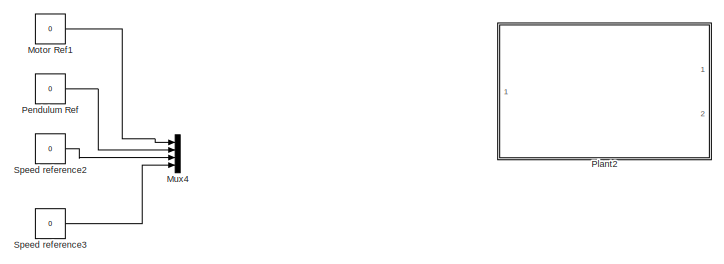
[diagram: root canvas - part 1/2, top left region]
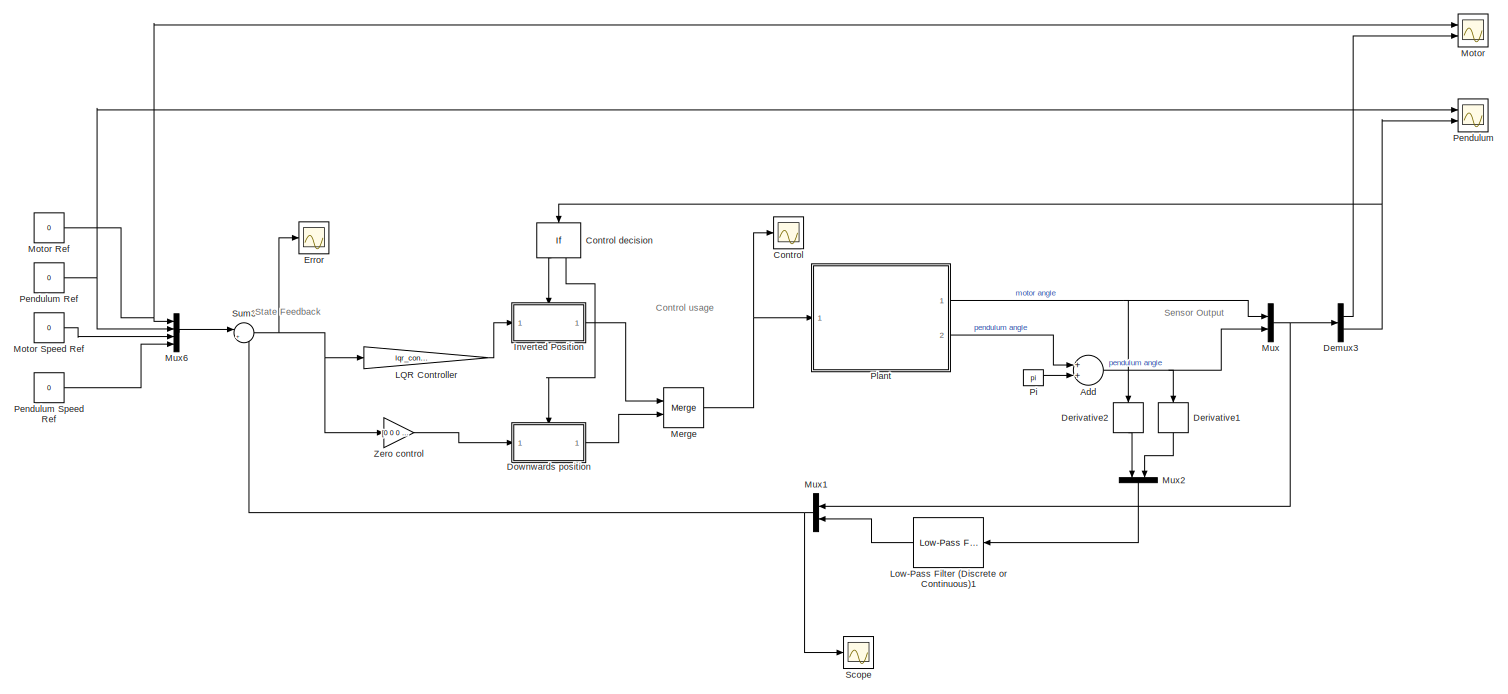
[diagram: root canvas - part 2/2, full width, middle band]
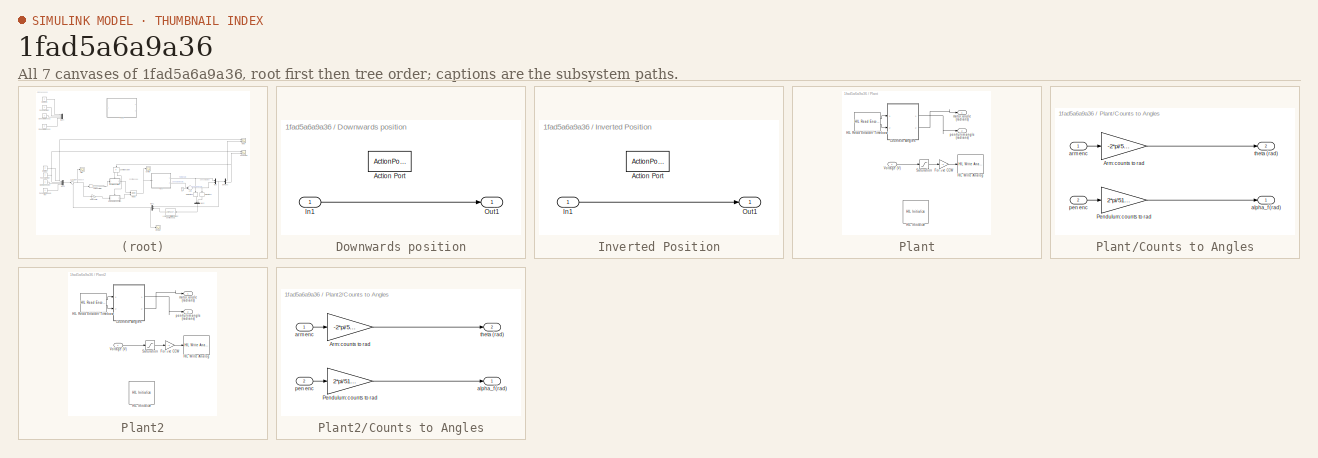
[diagram: thumbnail index - all 7 canvases of the model, root first then tree order]
MODEL slx_1fad5a6a9a36
KIND model
CONFIG AbsTol = auto
CONFIG EnableMultiTasking = on
CONFIG FixedStep = 0.002
CONFIG MaxStep = auto
CONFIG MinStep = auto
CONFIG RelTol = 1e-3
CONFIG SampleTimeConstraint = Unconstrained
CONFIG Solver = ode4
CONFIG SolverName = ode4
CONFIG StartTime = 0.0
CONFIG StopTime = 50
BLOCK [Sum] Add
  InputSameDT = off
  OutDataTypeStr = Inherit: Inherit via internal rule
  Ports = [2, 1]
  SaturateOnIntegerOverflow = off
BLOCK [Scope] Control
  Floating = off
  NumInputPorts = 1
  Ports = [1]
  ScopeSpecificationString = Simulink.scopes.TimeScopeBlockCfg('CurrentConfiguration', extmgr.ConfigurationSet(extmgr.Configuration('Core','General UI',true),extmgr.Configuration('Core','Source UI',true),extmgr.Configuration('Sources','WiredSimulink',true,'DataLoggingVariableName','ScopeData12'),extmgr.Configuration('Visuals','Time Domain',true,'SerializedDisplays',{struct('MinYLimReal','-49.18821','MaxYLimReal','64.01135','Y...<+1442ch>
BLOCK [If] Control decision
  IfExpression = u1 > -0.4 & u1 < 0.4
  Ports = [1, 2]
BLOCK [Demux] Demux3
  DisplayOption = bar
  Outputs = 2
  Ports = [1, 2]
BLOCK [Derivative] Derivative1
BLOCK [Derivative] Derivative2
BLOCK [SubSystem] Downwards position
  Ports = [1, 1, 0, 0, 0, 0, 0, 1]
  RequestExecContextInheritance = off
  TreatAsAtomicUnit = on
BLOCK [ActionPort] Downwards position/Action Port
  ActionType = else
BLOCK [Inport] Downwards position/In1
  IconDisplay = Port number
BLOCK [Outport] Downwards position/Out1
  IconDisplay = Port number
BLOCK [Scope] Error 
  Floating = off
  NumInputPorts = 1
  Ports = [1]
  ScopeSpecificationString = Simulink.scopes.TimeScopeBlockCfg('CurrentConfiguration', extmgr.ConfigurationSet(extmgr.Configuration('Core','General UI',true),extmgr.Configuration('Core','Source UI',true),extmgr.Configuration('Sources','WiredSimulink',true,'DataLoggingVariableName','ScopeData1'),extmgr.Configuration('Visuals','Time Domain',true,'SerializedDisplays',{struct('MinYLimReal','-35.78614','MaxYLimReal','34.45775','YL...<+1560ch>
BLOCK [SubSystem] Inverted Position
  Ports = [1, 1, 0, 0, 0, 0, 0, 1]
  RequestExecContextInheritance = off
  TreatAsAtomicUnit = on
BLOCK [ActionPort] Inverted Position/Action Port
  ActionType = then
BLOCK [Inport] Inverted Position/In1
  IconDisplay = Port number
BLOCK [Outport] Inverted Position/Out1
  IconDisplay = Port number
BLOCK [Gain] LQR Controller
  Gain = lqr_controller
  Multiplication = Matrix(K*u)
  OutDataTypeStr = Inherit: Inherit via internal rule
  ParamDataTypeStr = Inherit: Inherit via internal rule
  SaturateOnIntegerOverflow = off
BLOCK [Reference] Low-Pass Filter (Discrete or Continuous)1  REF=peGeneralControl/Low-Pass Filter
(Discrete or Continuous)
  Ports = [1, 1]
  SourceBlock = peGeneralControl/Low-Pass Filter\n(Discrete or Continuous)
  SourceType = Low-Pass Filter (Discrete or Continuous)
BLOCK [Merge] Merge
  Ports = [2, 1]
BLOCK [Scope] Motor
  Floating = off
  NumInputPorts = 2
  Ports = [2]
  ScopeSpecificationString = Simulink.scopes.TimeScopeBlockCfg('CurrentConfiguration', extmgr.ConfigurationSet(extmgr.Configuration('Core','General UI',true,'FigureColor',[1 1 1]),extmgr.Configuration('Core','Source UI',true),extmgr.Configuration('Sources','WiredSimulink',true,'DataLoggingVariableName','ScopeData4'),extmgr.Configuration('Visuals','Time Domain',true,'SerializedDisplays',{struct('MinYLimReal','-5.65732','MaxYLi...<+1520ch>
BLOCK [Constant] Motor Ref
  Value = 0
BLOCK [Constant] Motor Ref1
  Commented = on
  Value = 0
BLOCK [Constant] Motor Speed Ref
  Value = 0
BLOCK [Mux] Mux
  DisplayOption = bar
  Inputs = 2
  Ports = [2, 1]
BLOCK [Mux] Mux1
  DisplayOption = bar
  Inputs = 2
  Ports = [2, 1]
BLOCK [Mux] Mux2
  DisplayOption = bar
  Inputs = 2
  Ports = [2, 1]
BLOCK [Mux] Mux4
  Commented = on
  DisplayOption = bar
  Ports = [4, 1]
BLOCK [Mux] Mux6
  DisplayOption = bar
  Ports = [4, 1]
BLOCK [Scope] Pendulum
  Floating = off
  NumInputPorts = 2
  Ports = [2]
  ScopeSpecificationString = Simulink.scopes.TimeScopeBlockCfg('CurrentConfiguration', extmgr.ConfigurationSet(extmgr.Configuration('Core','General UI',true,'FigureColor',[1 1 1]),extmgr.Configuration('Core','Source UI',true),extmgr.Configuration('Sources','WiredSimulink',true,'DataLoggingVariableName','ScopeData6'),extmgr.Configuration('Visuals','Time Domain',true,'SerializedDisplays',{struct('MinYLimReal','-2.23539','MaxYLi...<+1497ch>
BLOCK [Constant] Pendulum Ref
  Commented = on
  Value = 0
BLOCK [Constant] Pendulum Ref 
  Value = 0
BLOCK [Constant] Pendulum Speed Ref
  Value = 0
BLOCK [Constant] Pi
  Value = pi
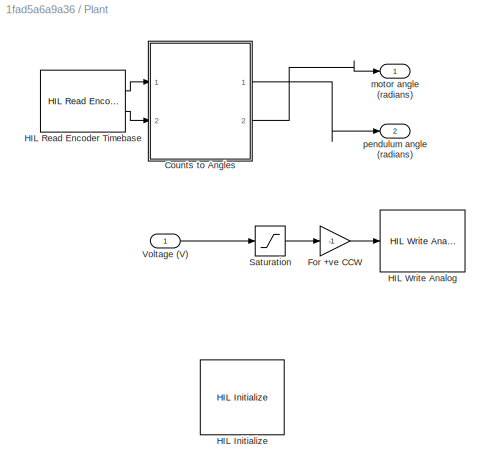
BLOCK [SubSystem] Plant
  Ports = [1, 2]
  RequestExecContextInheritance = off
BLOCK [SubSystem] Plant/Counts to Angles
  Ports = [2, 2]
  RequestExecContextInheritance = off
BLOCK [Gain] Plant/Counts to Angles/Arm: counts to rad
  Gain = -2*pi/512/4
  OutDataTypeStr = Inherit: Inherit via internal rule
  ParamDataTypeStr = Inherit: Inherit via internal rule
  SaturateOnIntegerOverflow = off
BLOCK [Gain] Plant/Counts to Angles/Pendulum: counts to rad
  Gain = 2*pi/512/4
  OutDataTypeStr = Inherit: Inherit via internal rule
  ParamDataTypeStr = Inherit: Inherit via internal rule
  SaturateOnIntegerOverflow = off
BLOCK [Outport] Plant/Counts to Angles/alpha_f (rad)
  IconDisplay = Port number
BLOCK [Inport] Plant/Counts to Angles/arm enc
  IconDisplay = Port number
BLOCK [Inport] Plant/Counts to Angles/pen enc
  IconDisplay = Port number
  Port = 2
BLOCK [Outport] Plant/Counts to Angles/theta (rad)
  IconDisplay = Port number
  Port = 2
BLOCK [Gain] Plant/For +ve CCW
  Gain = -1
  OutDataTypeStr = Inherit: Inherit via internal rule
  ParamDataTypeStr = Inherit: Inherit via internal rule
  SaturateOnIntegerOverflow = off
BLOCK [Reference] Plant/HIL Initialize  REF=quarc_library/Data Acquisition/Generic/Configuration/HIL Initialize
  AttributesFormatString = %<object_name> (%<board_type>-%<board_number>)
  Ports = []
  SourceBlock = quarc_library/Data Acquisition/Generic/Configuration/HIL Initialize
  SourceProductName = QUARC Targets
  SourceType = HIL Initialize
  UserDataPersistent = on
BLOCK [Reference] Plant/HIL Read Encoder Timebase  REF=quarc_library/Data Acquisition/Generic/Timebases/HIL Read Encoder
Timebase
  AttributesFormatString = (%<object_name>)
  Ports = [0, 2]
  SourceBlock = quarc_library/Data Acquisition/Generic/Timebases/HIL Read Encoder\nTimebase
  SourceProductName = QUARC Targets
  SourceType = HIL Read Encoder Timebase
  UserDataPersistent = on
BLOCK [Reference] Plant/HIL Write Analog  REF=quarc_library/Data Acquisition/Generic/Immediate I//O/HIL Write Analog
  AttributesFormatString = (%<object_name>)
  Ports = [1]
  SourceBlock = quarc_library/Data Acquisition/Generic/Immediate I//O/HIL Write Analog
  SourceProductName = QUARC Targets
  SourceType = HIL Write Analog
  UserDataPersistent = on
BLOCK [Saturate] Plant/Saturation
  InputPortMap = u0
  LowerLimit = -10
  Ports = [1, 1]
  UpperLimit = 10
BLOCK [Inport] Plant/Voltage (V)
  IconDisplay = Port number
BLOCK [Outport] Plant/motor angle (radians)
  IconDisplay = Port number
BLOCK [Outport] Plant/pendulum angle (radians)
  IconDisplay = Port number
  Port = 2
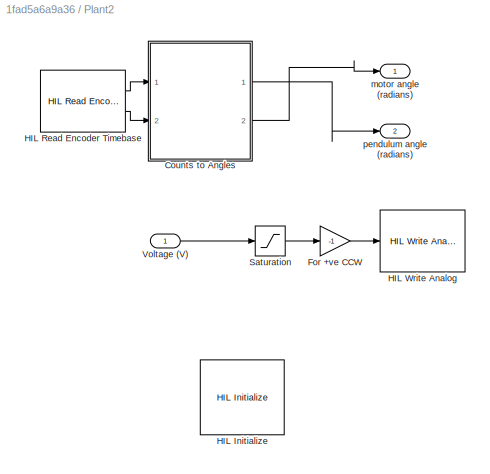
BLOCK [SubSystem] Plant2
  Commented = on
  Ports = [1, 2]
  RequestExecContextInheritance = off
BLOCK [SubSystem] Plant2/Counts to Angles
  Ports = [2, 2]
  RequestExecContextInheritance = off
BLOCK [Gain] Plant2/Counts to Angles/Arm: counts to rad
  Gain = -2*pi/512/4
  OutDataTypeStr = Inherit: Inherit via internal rule
  ParamDataTypeStr = Inherit: Inherit via internal rule
  SaturateOnIntegerOverflow = off
BLOCK [Gain] Plant2/Counts to Angles/Pendulum: counts to rad
  Gain = 2*pi/512/4
  OutDataTypeStr = Inherit: Inherit via internal rule
  ParamDataTypeStr = Inherit: Inherit via internal rule
  SaturateOnIntegerOverflow = off
BLOCK [Outport] Plant2/Counts to Angles/alpha_f (rad)
  IconDisplay = Port number
BLOCK [Inport] Plant2/Counts to Angles/arm enc
  IconDisplay = Port number
BLOCK [Inport] Plant2/Counts to Angles/pen enc
  IconDisplay = Port number
  Port = 2
BLOCK [Outport] Plant2/Counts to Angles/theta (rad)
  IconDisplay = Port number
  Port = 2
BLOCK [Gain] Plant2/For +ve CCW
  Gain = -1
  OutDataTypeStr = Inherit: Inherit via internal rule
  ParamDataTypeStr = Inherit: Inherit via internal rule
  SaturateOnIntegerOverflow = off
BLOCK [Reference] Plant2/HIL Initialize  REF=quarc_library/Data Acquisition/Generic/Configuration/HIL Initialize
  AttributesFormatString = %<object_name> (%<board_type>-%<board_number>)
  Ports = []
  SourceBlock = quarc_library/Data Acquisition/Generic/Configuration/HIL Initialize
  SourceProductName = QUARC Targets
  SourceType = HIL Initialize
  UserDataPersistent = on
BLOCK [Reference] Plant2/HIL Read Encoder Timebase  REF=quarc_library/Data Acquisition/Generic/Timebases/HIL Read Encoder
Timebase
  AttributesFormatString = (%<object_name>)
  Ports = [0, 2]
  SourceBlock = quarc_library/Data Acquisition/Generic/Timebases/HIL Read Encoder\nTimebase
  SourceProductName = QUARC Targets
  SourceType = HIL Read Encoder Timebase
  UserDataPersistent = on
BLOCK [Reference] Plant2/HIL Write Analog  REF=quarc_library/Data Acquisition/Generic/Immediate I//O/HIL Write Analog
  AttributesFormatString = (%<object_name>)
  Ports = [1]
  SourceBlock = quarc_library/Data Acquisition/Generic/Immediate I//O/HIL Write Analog
  SourceProductName = QUARC Targets
  SourceType = HIL Write Analog
  UserDataPersistent = on
BLOCK [Saturate] Plant2/Saturation
  InputPortMap = u0
  LowerLimit = -10
  Ports = [1, 1]
  UpperLimit = 10
BLOCK [Inport] Plant2/Voltage (V)
  IconDisplay = Port number
BLOCK [Outport] Plant2/motor angle (radians)
  IconDisplay = Port number
BLOCK [Outport] Plant2/pendulum angle (radians)
  IconDisplay = Port number
  Port = 2
BLOCK [Scope] Scope
  Floating = off
  NumInputPorts = 1
  Ports = [1]
  ScopeSpecificationString = Simulink.scopes.TimeScopeBlockCfg('CurrentConfiguration', extmgr.ConfigurationSet(extmgr.Configuration('Core','General UI',true),extmgr.Configuration('Core','Source UI',true),extmgr.Configuration('Sources','WiredSimulink',true,'DataLoggingVariableName','ScopeData1'),extmgr.Configuration('Visuals','Time Domain',true),extmgr.Configuration('Tools','Plot Navigation',true),extmgr.Configuration('Tools',...<+40ch>
BLOCK [Constant] Speed reference2
  Commented = on
  Value = 0
BLOCK [Constant] Speed reference3
  Commented = on
  Value = 0
BLOCK [Sum] Sum3
  IconShape = round
  InputSameDT = off
  Inputs = |+-
  OutDataTypeStr = Inherit: Inherit via internal rule
  Ports = [2, 1]
  SaturateOnIntegerOverflow = off
BLOCK [Gain] Zero control
  Gain = [0 0 0 0]
  Multiplication = Matrix(K*u)
  OutDataTypeStr = Inherit: Inherit via internal rule
  ParamDataTypeStr = Inherit: Inherit via internal rule
  SaturateOnIntegerOverflow = off
ANNOTATION (root): Control usage
ANNOTATION (root): Sensor Output
ANNOTATION (root): State Feedback
NET Add:1 -> Derivative1:1, Mux:2
LINE Control decision:1 -> Inverted Position:ifaction
LINE Control decision:2 -> Downwards position:ifaction
LINE Demux3:1 -> Motor:2
NET Demux3:2 -> Control decision:1, Pendulum:2
LINE Derivative1:1 -> Mux2:2
LINE Derivative2:1 -> Mux2:1
LINE Downwards position/In1:1 -> Downwards position/Out1:1
LINE Downwards position:1 -> Merge:2
LINE Inverted Position/In1:1 -> Inverted Position/Out1:1
LINE Inverted Position:1 -> Merge:1
LINE LQR Controller:1 -> Inverted Position:1
LINE Low-Pass Filter (Discrete or Continuous)1:1 -> Mux1:2
NET Merge:1 -> Control:1, Plant:1
LINE Motor Ref1:1 -> Mux4:1
NET Motor Ref:1 -> Motor:1, Mux6:1
LINE Motor Speed Ref:1 -> Mux6:3
NET Mux1:1 -> Scope:1, Sum3:2
LINE Mux2:1 -> Low-Pass Filter (Discrete or Continuous)1:1
LINE Mux6:1 -> Sum3:1
NET Mux:1 -> Demux3:1, Mux1:1
NET Pendulum Ref :1 -> Mux6:2, Pendulum:1
LINE Pendulum Ref:1 -> Mux4:2
LINE Pendulum Speed Ref:1 -> Mux6:4
LINE Pi:1 -> Add:2
LINE Plant/Counts to Angles/Arm: counts to rad:1 -> Plant/Counts to Angles/theta (rad):1
LINE Plant/Counts to Angles/Pendulum: counts to rad:1 -> Plant/Counts to Angles/alpha_f (rad):1
LINE Plant/Counts to Angles/arm enc:1 -> Plant/Counts to Angles/Arm: counts to rad:1
LINE Plant/Counts to Angles/pen enc:1 -> Plant/Counts to Angles/Pendulum: counts to rad:1
LINE Plant/Counts to Angles:1 -> Plant/pendulum angle (radians):1
LINE Plant/Counts to Angles:2 -> Plant/motor angle (radians):1
LINE Plant/For +ve CCW:1 -> Plant/HIL Write Analog:1
LINE Plant/HIL Read Encoder Timebase:1 -> Plant/Counts to Angles:1
LINE Plant/HIL Read Encoder Timebase:2 -> Plant/Counts to Angles:2
LINE Plant/Saturation:1 -> Plant/For +ve CCW:1
LINE Plant/Voltage (V):1 -> Plant/Saturation:1
LINE Plant2/Counts to Angles/Arm: counts to rad:1 -> Plant2/Counts to Angles/theta (rad):1
LINE Plant2/Counts to Angles/Pendulum: counts to rad:1 -> Plant2/Counts to Angles/alpha_f (rad):1
LINE Plant2/Counts to Angles/arm enc:1 -> Plant2/Counts to Angles/Arm: counts to rad:1
LINE Plant2/Counts to Angles/pen enc:1 -> Plant2/Counts to Angles/Pendulum: counts to rad:1
LINE Plant2/Counts to Angles:1 -> Plant2/pendulum angle (radians):1
LINE Plant2/Counts to Angles:2 -> Plant2/motor angle (radians):1
LINE Plant2/For +ve CCW:1 -> Plant2/HIL Write Analog:1
LINE Plant2/HIL Read Encoder Timebase:1 -> Plant2/Counts to Angles:1
LINE Plant2/HIL Read Encoder Timebase:2 -> Plant2/Counts to Angles:2
LINE Plant2/Saturation:1 -> Plant2/For +ve CCW:1
LINE Plant2/Voltage (V):1 -> Plant2/Saturation:1
NET Plant:1 -> Derivative2:1, Mux:1
LINE Plant:2 -> Add:1
LINE Speed reference2:1 -> Mux4:3
LINE Speed reference3:1 -> Mux4:4
NET Sum3:1 -> Error :1, LQR Controller:1, Zero control:1
LINE Zero control:1 -> Downwards position:1
note: NET lines group one-source signal fan-out (src -> all destinations, sorted); 1:1 wires keep LINE
